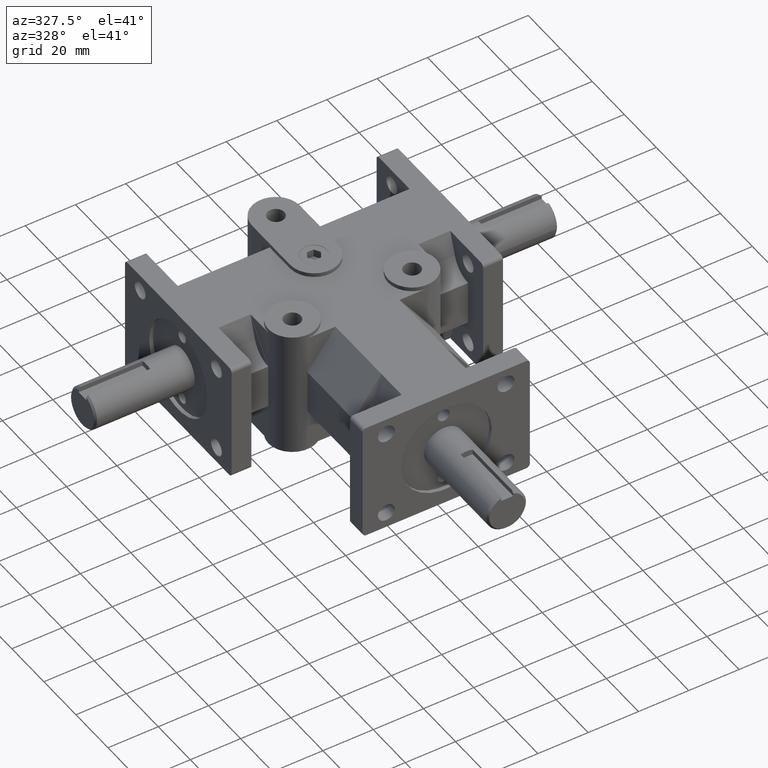
[diagram: clean part render]
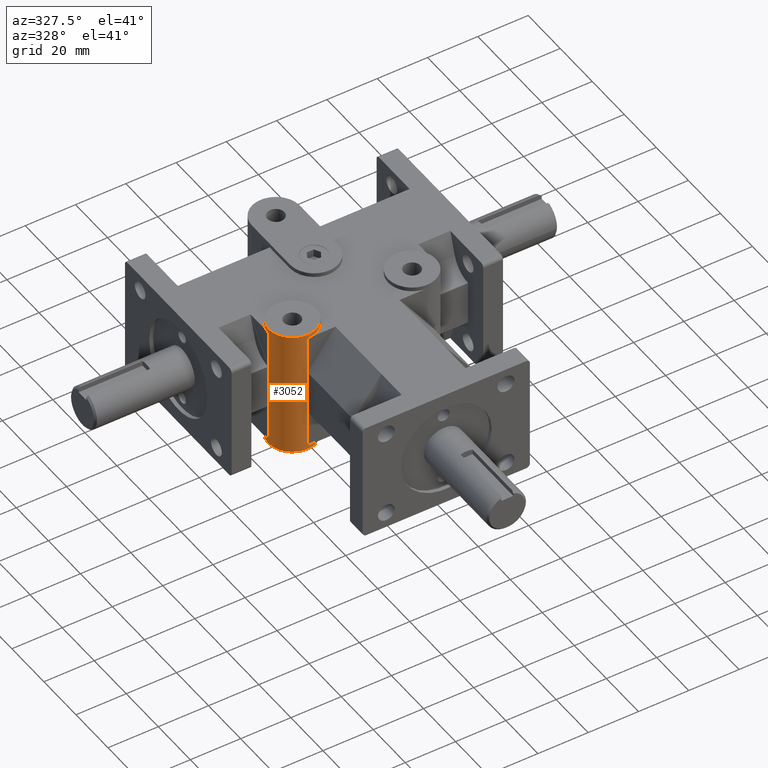
[diagram: same view with one face highlighted and labeled with its STEP entity id]
A machine part, auxiliary view. The second image highlights one B-rep face of the part: STEP entity #3052.
In plain terms, the highlighted cylindrical surface (bore or boss wall) has radius 9.525 mm, axis along (0, 0, 1).
Its self-contained STEP definition (entity closure, byte-faithful):
#322=FACE_OUTER_BOUND('',#520,.T.);
#520=EDGE_LOOP('',(#2658,#2659,#2660,#2661,#2662,#2663,#2664,#2665,#2666,
#2667,#2668,#2669,#2670,#2671));
#811=LINE('',#5082,#1107);
#821=LINE('',#5104,#1117);
#823=LINE('',#5108,#1119);
#824=LINE('',#5111,#1120);
#825=LINE('',#5113,#1121);
#826=LINE('',#5114,#1122);
#827=LINE('',#5115,#1123);
#828=LINE('',#5116,#1124);
#1107=VECTOR('',#4170,1.);
#1117=VECTOR('',#4190,1.);
#1119=VECTOR('',#4194,1.);
#1120=VECTOR('',#4197,0.375);
#1121=VECTOR('',#4198,1.);
#1122=VECTOR('',#4199,1.);
#1123=VECTOR('',#4200,0.375);
#1124=VECTOR('',#4201,1.);
#1270=CIRCLE('',#3337,0.375);
#1272=CIRCLE('',#3340,0.375);
#1273=CIRCLE('',#3342,0.375);
#1278=CIRCLE('',#3362,0.375);
#1429=VERTEX_POINT('',#4664);
#1466=VERTEX_POINT('',#4802);
#1530=VERTEX_POINT('',#5030);
#1531=VERTEX_POINT('',#5032);
#1534=VERTEX_POINT('',#5042);
#1535=VERTEX_POINT('',#5045);
#1552=VERTEX_POINT('',#5102);
#1553=VERTEX_POINT('',#5106);
#1554=VERTEX_POINT('',#5110);
#1555=VERTEX_POINT('',#5112);
#1917=EDGE_CURVE('',#1530,#1531,#1270,.T.);
#1923=EDGE_CURVE('',#1534,#1534,#1272,.T.);
#1924=EDGE_CURVE('',#1535,#1535,#1273,.T.);
#1942=EDGE_CURVE('',#1531,#1429,#811,.T.);
#1952=EDGE_CURVE('',#1552,#1530,#821,.T.);
#1954=EDGE_CURVE('',#1553,#1466,#823,.T.);
#1955=EDGE_CURVE('',#1534,#1554,#824,.T.);
#1956=EDGE_CURVE('',#1555,#1554,#825,.T.);
#1957=EDGE_CURVE('',#1429,#1555,#826,.T.);
#1958=EDGE_CURVE('',#1531,#1535,#827,.T.);
#1959=EDGE_CURVE('',#1466,#1552,#828,.T.);
#1960=EDGE_CURVE('',#1554,#1553,#1278,.T.);
#2658=ORIENTED_EDGE('',*,*,#1923,.T.);
#2659=ORIENTED_EDGE('',*,*,#1955,.T.);
#2660=ORIENTED_EDGE('',*,*,#1956,.F.);
#2661=ORIENTED_EDGE('',*,*,#1957,.F.);
#2662=ORIENTED_EDGE('',*,*,#1942,.F.);
#2663=ORIENTED_EDGE('',*,*,#1958,.T.);
#2664=ORIENTED_EDGE('',*,*,#1924,.T.);
#2665=ORIENTED_EDGE('',*,*,#1958,.F.);
#2666=ORIENTED_EDGE('',*,*,#1917,.F.);
#2667=ORIENTED_EDGE('',*,*,#1952,.F.);
#2668=ORIENTED_EDGE('',*,*,#1959,.F.);
#2669=ORIENTED_EDGE('',*,*,#1954,.F.);
#2670=ORIENTED_EDGE('',*,*,#1960,.F.);
#2671=ORIENTED_EDGE('',*,*,#1955,.F.);
#2906=CYLINDRICAL_SURFACE('',#3361,0.375);
#3052=ADVANCED_FACE('',(#322),#2906,.T.);
#3337=AXIS2_PLACEMENT_3D('',#5033,#4117,#4118);
#3340=AXIS2_PLACEMENT_3D('',#5043,#4127,#4128);
#3342=AXIS2_PLACEMENT_3D('',#5046,#4131,#4132);
#3361=AXIS2_PLACEMENT_3D('',#5109,#4195,#4196);
#3362=AXIS2_PLACEMENT_3D('',#5117,#4202,#4203);
#4117=DIRECTION('center_axis',(0.,0.,1.));
#4118=DIRECTION('ref_axis',(1.,0.,0.));
#4127=DIRECTION('center_axis',(0.,0.,-1.));
#4128=DIRECTION('ref_axis',(1.,0.,0.));
#4131=DIRECTION('center_axis',(0.,0.,1.));
#4132=DIRECTION('ref_axis',(1.,0.,0.));
#4170=DIRECTION('',(0.,0.,1.));
#4190=DIRECTION('',(0.,0.,-1.));
#4194=DIRECTION('',(0.,0.,-1.));
#4195=DIRECTION('center_axis',(0.,0.,1.));
#4196=DIRECTION('ref_axis',(1.,0.,0.));
#4197=DIRECTION('',(0.,0.,-1.));
#4198=DIRECTION('',(0.,0.,1.));
#4199=DIRECTION('',(0.,0.,1.));
#4200=DIRECTION('',(0.,0.,-1.));
#4201=DIRECTION('',(0.,0.,-1.));
#4202=DIRECTION('center_axis',(0.,0.,-1.));
#4203=DIRECTION('ref_axis',(1.,0.,0.));
#4664=CARTESIAN_POINT('',(-1.3125,2.3125,-0.343749999999999));
#4802=CARTESIAN_POINT('',(-0.9375,1.9375,0.34375));
#5030=CARTESIAN_POINT('',(-0.9375,1.9375,-0.9375));
#5032=CARTESIAN_POINT('',(-1.3125,2.3125,-0.9375));
#5033=CARTESIAN_POINT('Origin',(-0.9375,2.3125,-0.9375));
#5042=CARTESIAN_POINT('',(-1.3125,2.3125,1.));
#5043=CARTESIAN_POINT('Origin',(-0.9375,2.3125,1.));
#5045=CARTESIAN_POINT('',(-1.3125,2.3125,-1.));
#5046=CARTESIAN_POINT('Origin',(-0.9375,2.3125,-1.));
#5082=CARTESIAN_POINT('',(-1.3125,2.3125,0.));
#5102=CARTESIAN_POINT('',(-0.9375,1.9375,-0.34375));
#5104=CARTESIAN_POINT('',(-0.9375,1.9375,0.));
#5106=CARTESIAN_POINT('',(-0.9375,1.9375,0.9375));
#5108=CARTESIAN_POINT('',(-0.9375,1.9375,0.));
#5109=CARTESIAN_POINT('Origin',(-0.9375,2.3125,0.));
#5110=CARTESIAN_POINT('',(-1.3125,2.3125,0.9375));
#5111=CARTESIAN_POINT('',(-1.3125,2.3125,0.));
#5112=CARTESIAN_POINT('',(-1.3125,2.3125,0.343749999999999));
#5113=CARTESIAN_POINT('',(-1.3125,2.3125,0.));
#5114=CARTESIAN_POINT('',(-1.3125,2.3125,0.));
#5115=CARTESIAN_POINT('',(-1.3125,2.3125,0.));
#5116=CARTESIAN_POINT('',(-0.9375,1.9375,0.));
#5117=CARTESIAN_POINT('Origin',(-0.9375,2.3125,0.9375));